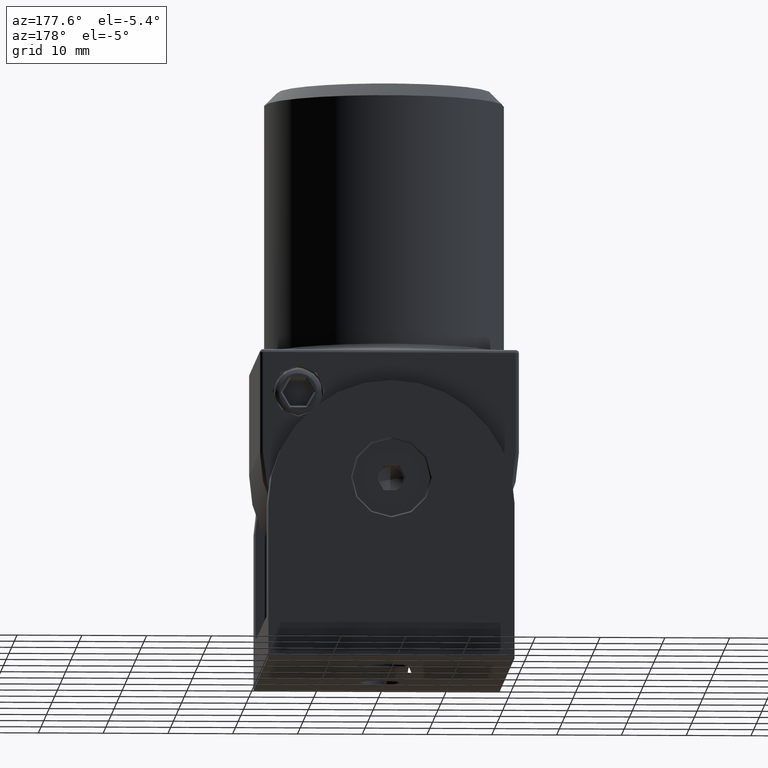
[diagram: clean part render]
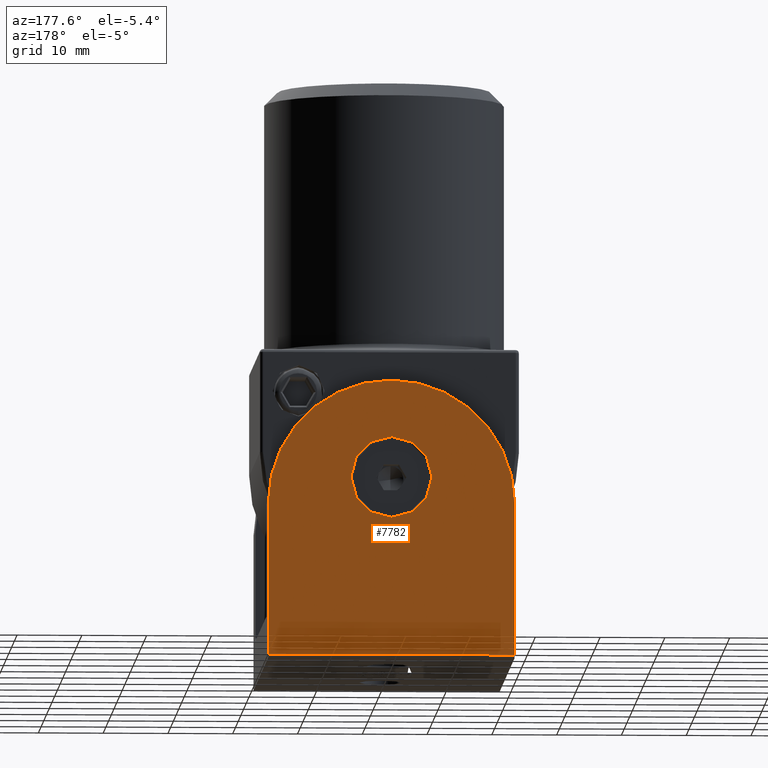
[diagram: same view with one face highlighted and labeled with its STEP entity id]
A machine part, auxiliary view. The second image highlights one B-rep face of the part: STEP entity #7782.
In plain terms, the highlighted planar face has unit normal (0, -1, 0).
Its self-contained STEP definition (entity closure, byte-faithful):
#262 = VERTEX_POINT ( 'NONE', #19962 ) ;
#288 = EDGE_CURVE ( 'NONE', #4124, #11663, #18623, .T. ) ;
#574 = VERTEX_POINT ( 'NONE', #14522 ) ;
#987 = ORIENTED_EDGE ( 'NONE', *, *, #7264, .F. ) ;
#1151 = AXIS2_PLACEMENT_3D ( 'NONE', #19039, #20746, #9117 ) ;
#1287 = VECTOR ( 'NONE', #11576, 1000.000000000000000 ) ;
#1478 = VERTEX_POINT ( 'NONE', #18784 ) ;
#1949 = DIRECTION ( 'NONE',  ( 0.000000000000000000, -1.000000000000000000, 0.000000000000000000 ) ) ;
#2019 = PLANE ( 'NONE',  #11879 ) ;
#2020 = EDGE_CURVE ( 'NONE', #4124, #7566, #12242, .T. ) ;
#2718 = CARTESIAN_POINT ( 'NONE',  ( 0.000000000000000000, 27.50000000000000000, 23.99999999999999645 ) ) ;
#2972 = CARTESIAN_POINT ( 'NONE',  ( 19.00000000000000000, 27.50000000000000000, 43.00000000000000000 ) ) ;
#3361 = CIRCLE ( 'NONE', #9025, 6.250000000000001776 ) ;
#3955 = VECTOR ( 'NONE', #21350, 1000.000000000000000 ) ;
#3970 = DIRECTION ( 'NONE',  ( 0.000000000000000000, 0.000000000000000000, -1.000000000000000000 ) ) ;
#4124 = VERTEX_POINT ( 'NONE', #8283 ) ;
#4469 = DIRECTION ( 'NONE',  ( 0.000000000000000000, 0.000000000000000000, -1.000000000000000000 ) ) ;
#4518 = CARTESIAN_POINT ( 'NONE',  ( 19.00000000000000000, 27.50000000000000000, 0.4999999999999935052 ) ) ;
#4854 = AXIS2_PLACEMENT_3D ( 'NONE', #2718, #14672, #4469 ) ;
#6701 = DIRECTION ( 'NONE',  ( -0.000000000000000000, 1.000000000000000000, -0.000000000000000000 ) ) ;
#6954 = DIRECTION ( 'NONE',  ( 0.000000000000000000, -0.000000000000000000, -1.000000000000000000 ) ) ;
#7165 = ORIENTED_EDGE ( 'NONE', *, *, #2020, .T. ) ;
#7264 = EDGE_CURVE ( 'NONE', #1478, #574, #3361, .T. ) ;
#7288 = CARTESIAN_POINT ( 'NONE',  ( 19.00000000000000000, 27.50000000000000000, 23.99999999999999645 ) ) ;
#7566 = VERTEX_POINT ( 'NONE', #14297 ) ;
#7782 = ADVANCED_FACE ( 'NONE', ( #20960, #15893 ), #2019, .F. ) ;
#8165 = EDGE_CURVE ( 'NONE', #574, #1478, #18510, .T. ) ;
#8283 = CARTESIAN_POINT ( 'NONE',  ( 19.00000000000000000, 27.50000000000000000, 0.4999999999999935052 ) ) ;
#8574 = LINE ( 'NONE', #19782, #3955 ) ;
#8903 = CARTESIAN_POINT ( 'NONE',  ( 0.000000000000000000, 27.50000000000000000, 23.99999999999999645 ) ) ;
#9025 = AXIS2_PLACEMENT_3D ( 'NONE', #15142, #6701, #11938 ) ;
#9117 = DIRECTION ( 'NONE',  ( 0.000000000000000000, 0.000000000000000000, 1.000000000000000000 ) ) ;
#10520 = EDGE_CURVE ( 'NONE', #12808, #262, #10736, .T. ) ;
#10736 = CIRCLE ( 'NONE', #4854, 19.00000000000000000 ) ;
#11576 = DIRECTION ( 'NONE',  ( -0.000000000000000000, -0.000000000000000000, 1.000000000000000000 ) ) ;
#11663 = VERTEX_POINT ( 'NONE', #7288 ) ;
#11711 = EDGE_CURVE ( 'NONE', #262, #11663, #13883, .T. ) ;
#11879 = AXIS2_PLACEMENT_3D ( 'NONE', #20504, #1949, #6954 ) ;
#11938 = DIRECTION ( 'NONE',  ( 0.000000000000000000, 0.000000000000000000, 1.000000000000000000 ) ) ;
#12242 = LINE ( 'NONE', #4518, #19212 ) ;
#12808 = VERTEX_POINT ( 'NONE', #13964 ) ;
#13473 = AXIS2_PLACEMENT_3D ( 'NONE', #8903, #14231, #3970 ) ;
#13883 = CIRCLE ( 'NONE', #13473, 19.00000000000000000 ) ;
#13964 = CARTESIAN_POINT ( 'NONE',  ( -19.00000000000000000, 27.50000000000000000, 23.99999999999999645 ) ) ;
#14231 = DIRECTION ( 'NONE',  ( -0.000000000000000000, 1.000000000000000000, -0.000000000000000000 ) ) ;
#14297 = CARTESIAN_POINT ( 'NONE',  ( -19.00000000000000000, 27.50000000000000000, 0.4999999999999935052 ) ) ;
#14522 = CARTESIAN_POINT ( 'NONE',  ( 0.000000000000000000, 27.50000000000000000, 34.25000000000000000 ) ) ;
#14672 = DIRECTION ( 'NONE',  ( -0.000000000000000000, 1.000000000000000000, -0.000000000000000000 ) ) ;
#15142 = CARTESIAN_POINT ( 'NONE',  ( 0.000000000000000000, 27.50000000000000000, 28.00000000000000000 ) ) ;
#15893 = FACE_OUTER_BOUND ( 'NONE', #16744, .T. ) ;
#16381 = ORIENTED_EDGE ( 'NONE', *, *, #19341, .T. ) ;
#16686 = DIRECTION ( 'NONE',  ( -1.000000000000000000, 0.000000000000000000, 0.000000000000000000 ) ) ;
#16744 = EDGE_LOOP ( 'NONE', ( #17826, #7165, #16381, #19753, #21575 ) ) ;
#17826 = ORIENTED_EDGE ( 'NONE', *, *, #288, .F. ) ;
#18396 = ORIENTED_EDGE ( 'NONE', *, *, #8165, .F. ) ;
#18510 = CIRCLE ( 'NONE', #1151, 6.250000000000001776 ) ;
#18623 = LINE ( 'NONE', #2972, #1287 ) ;
#18784 = CARTESIAN_POINT ( 'NONE',  ( 7.654042494670955634E-16, 27.50000000000000000, 21.75000000000000000 ) ) ;
#19039 = CARTESIAN_POINT ( 'NONE',  ( 0.000000000000000000, 27.50000000000000000, 28.00000000000000000 ) ) ;
#19212 = VECTOR ( 'NONE', #16686, 1000.000000000000000 ) ;
#19341 = EDGE_CURVE ( 'NONE', #7566, #12808, #8574, .T. ) ;
#19753 = ORIENTED_EDGE ( 'NONE', *, *, #10520, .T. ) ;
#19782 = CARTESIAN_POINT ( 'NONE',  ( -19.00000000000000000, 27.50000000000000000, 43.00000000000000000 ) ) ;
#19962 = CARTESIAN_POINT ( 'NONE',  ( 0.000000000000000000, 27.50000000000000000, 43.00000000000000000 ) ) ;
#20504 = CARTESIAN_POINT ( 'NONE',  ( 19.00000000000000000, 27.50000000000000000, 43.00000000000000000 ) ) ;
#20746 = DIRECTION ( 'NONE',  ( -0.000000000000000000, 1.000000000000000000, -0.000000000000000000 ) ) ;
#20960 = FACE_BOUND ( 'NONE', #21274, .T. ) ;
#21274 = EDGE_LOOP ( 'NONE', ( #18396, #987 ) ) ;
#21350 = DIRECTION ( 'NONE',  ( -0.000000000000000000, -0.000000000000000000, 1.000000000000000000 ) ) ;
#21575 = ORIENTED_EDGE ( 'NONE', *, *, #11711, .T. ) ;